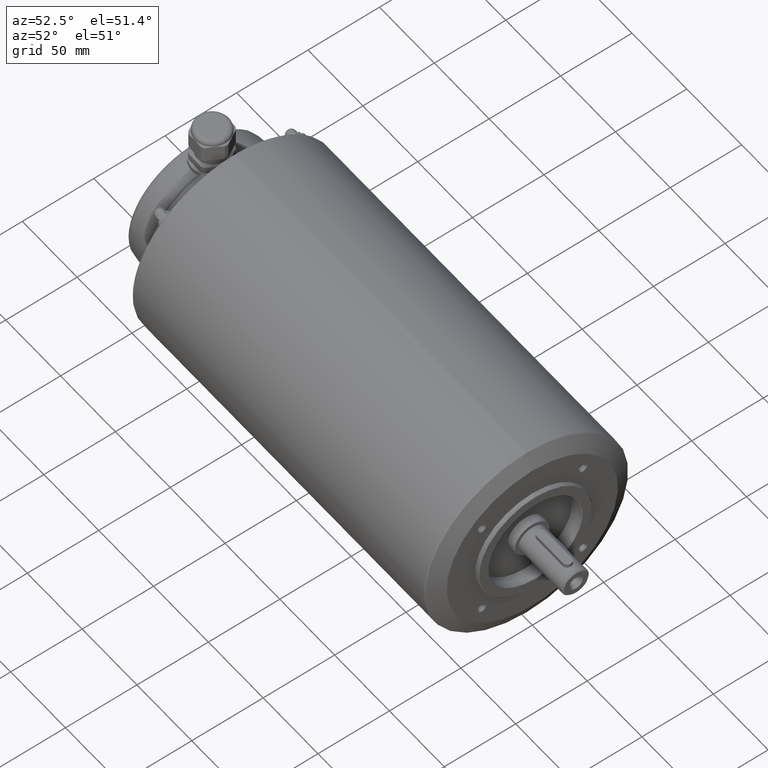
[diagram: clean part render]
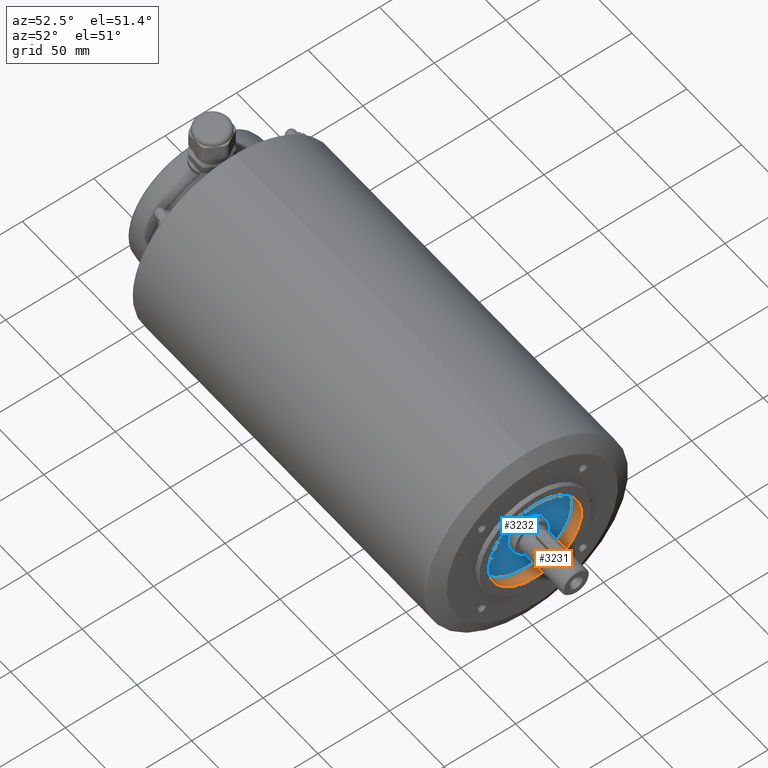
[diagram: same view with the hole feature highlighted: cylindrical wall and planar end face, labeled with their STEP entity ids]
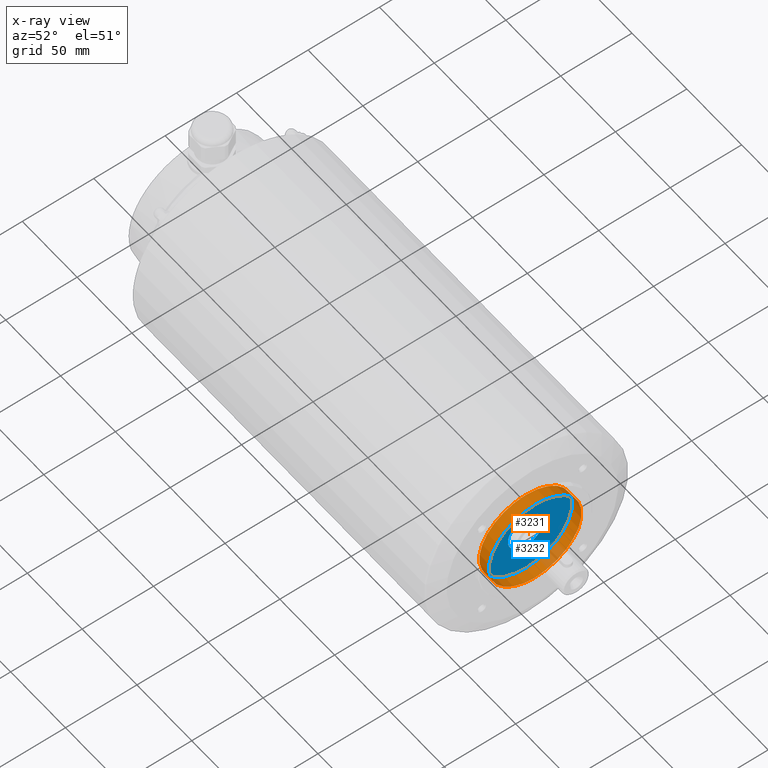
[diagram: x-ray of the same camera — body ghosted, the hole faces saturated]
A machine part, auxiliary view. The highlighted faces form one hole feature of diameter 65 mm: the cylindrical wall (entity #3231, orange) and its adjacent planar end face (entity #3232, blue) — they share a circular edge in the B-rep.
The next image is the same camera in x-ray (body ghosted, the hole faces saturated) — the bore reads through the body.
Wall:
#510=ORIENTED_EDGE('',*,*,#1049,.T.);
#511=ORIENTED_EDGE('',*,*,#1050,.T.);
#1049=EDGE_CURVE('',#1321,#1321,#1499,.T.);
#1050=EDGE_CURVE('',#1322,#1322,#1500,.T.);
#1321=VERTEX_POINT('',#4545);
#1322=VERTEX_POINT('',#4547);
#1499=CIRCLE('',#3446,32.5);
#1500=CIRCLE('',#3447,32.5);
#1616=EDGE_LOOP('',(#510));
#1617=EDGE_LOOP('',(#511));
#1859=FACE_BOUND('',#1616,.T.);
#1860=FACE_BOUND('',#1617,.T.);
#2074=CYLINDRICAL_SURFACE('',#3445,32.5);
#3231=ADVANCED_FACE('',(#1859,#1860),#2074,.F.);
#3445=AXIS2_PLACEMENT_3D('',#4543,#3834,#3835);
#3446=AXIS2_PLACEMENT_3D('',#4544,#3836,#3837);
#3447=AXIS2_PLACEMENT_3D('',#4546,#3838,#3839);
#3834=DIRECTION('',(-1.,0.,0.));
#3835=DIRECTION('',(0.,0.,1.));
#3836=DIRECTION('',(1.,0.,0.));
#3837=DIRECTION('',(0.,0.,-1.));
#3838=DIRECTION('',(-1.,0.,0.));
#3839=DIRECTION('',(0.,0.,1.));
#4543=CARTESIAN_POINT('',(-168.168341708543,0.,0.));
#4544=CARTESIAN_POINT('',(2.5,0.,0.));
#4545=CARTESIAN_POINT('',(2.5,0.,-32.5));
#4546=CARTESIAN_POINT('',(-6.00000000000001,0.,0.));
#4547=CARTESIAN_POINT('',(-6.00000000000001,0.,32.5));
End face:
#78=PLANE('',#3448);
#512=ORIENTED_EDGE('',*,*,#1051,.T.);
#513=ORIENTED_EDGE('',*,*,#1050,.F.);
#1050=EDGE_CURVE('',#1322,#1322,#1500,.T.);
#1051=EDGE_CURVE('',#1323,#1323,#1501,.T.);
#1322=VERTEX_POINT('',#4547);
#1323=VERTEX_POINT('',#4550);
#1500=CIRCLE('',#3447,32.5);
#1501=CIRCLE('',#3449,12.5);
#1618=EDGE_LOOP('',(#512));
#1619=EDGE_LOOP('',(#513));
#1861=FACE_BOUND('',#1618,.T.);
#1862=FACE_BOUND('',#1619,.T.);
#3232=ADVANCED_FACE('',(#1861,#1862),#78,.T.);
#3447=AXIS2_PLACEMENT_3D('',#4546,#3838,#3839);
#3448=AXIS2_PLACEMENT_3D('',#4548,#3840,#3841);
#3449=AXIS2_PLACEMENT_3D('',#4549,#3842,#3843);
#3838=DIRECTION('',(-1.,0.,0.));
#3839=DIRECTION('',(0.,0.,1.));
#3840=DIRECTION('',(1.,0.,0.));
#3841=DIRECTION('',(0.,0.,-1.));
#3842=DIRECTION('',(-1.,0.,0.));
#3843=DIRECTION('',(0.,0.,1.));
#4546=CARTESIAN_POINT('',(-6.00000000000001,0.,0.));
#4547=CARTESIAN_POINT('',(-6.00000000000001,0.,32.5));
#4548=CARTESIAN_POINT('',(-6.,0.,32.5));
#4549=CARTESIAN_POINT('',(-6.00000000000001,0.,0.));
#4550=CARTESIAN_POINT('',(-6.00000000000001,0.,12.5));